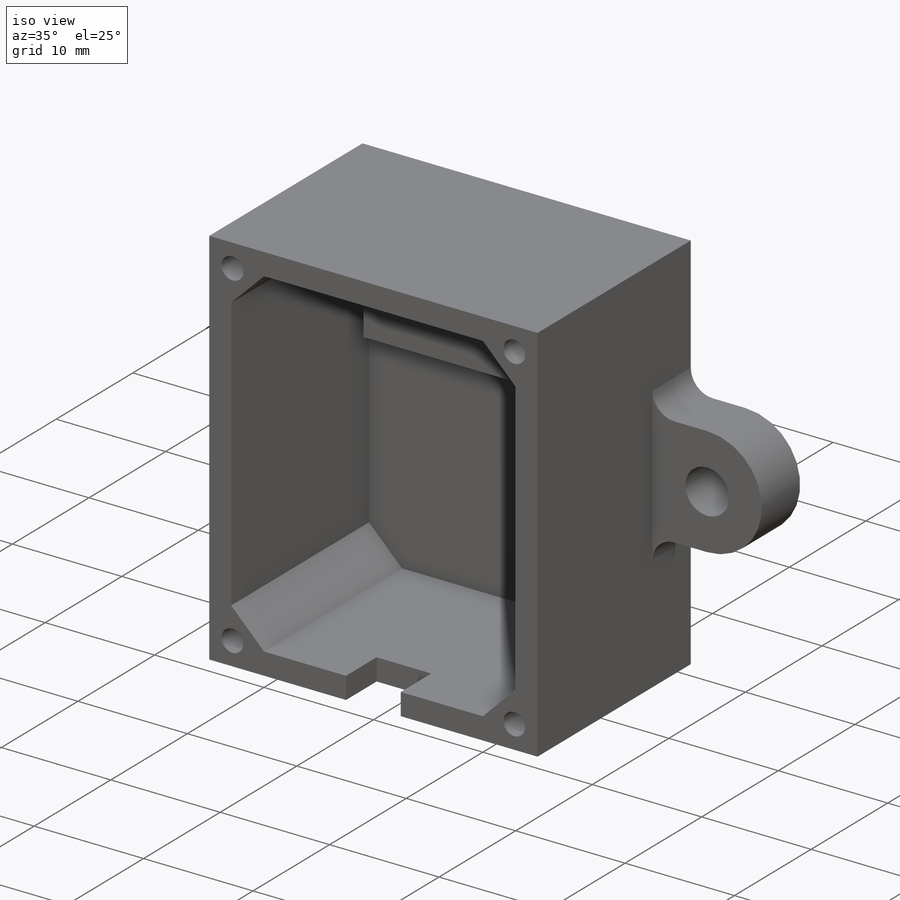
[diagram: iso view]
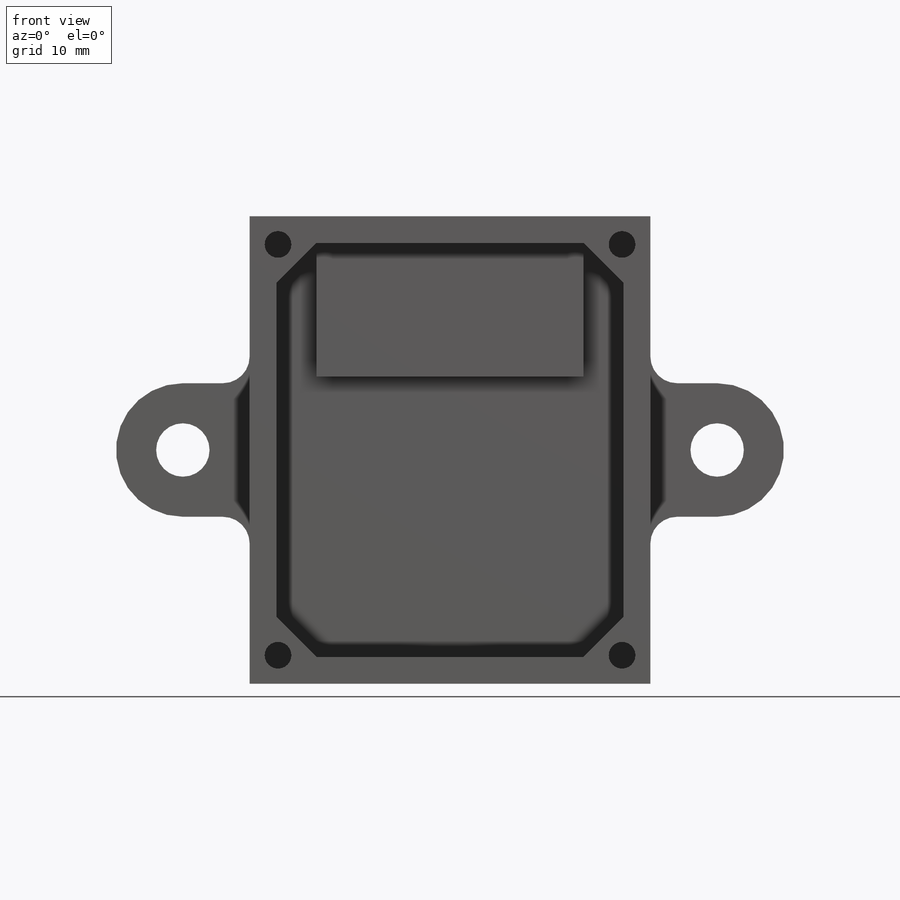
[diagram: front view]
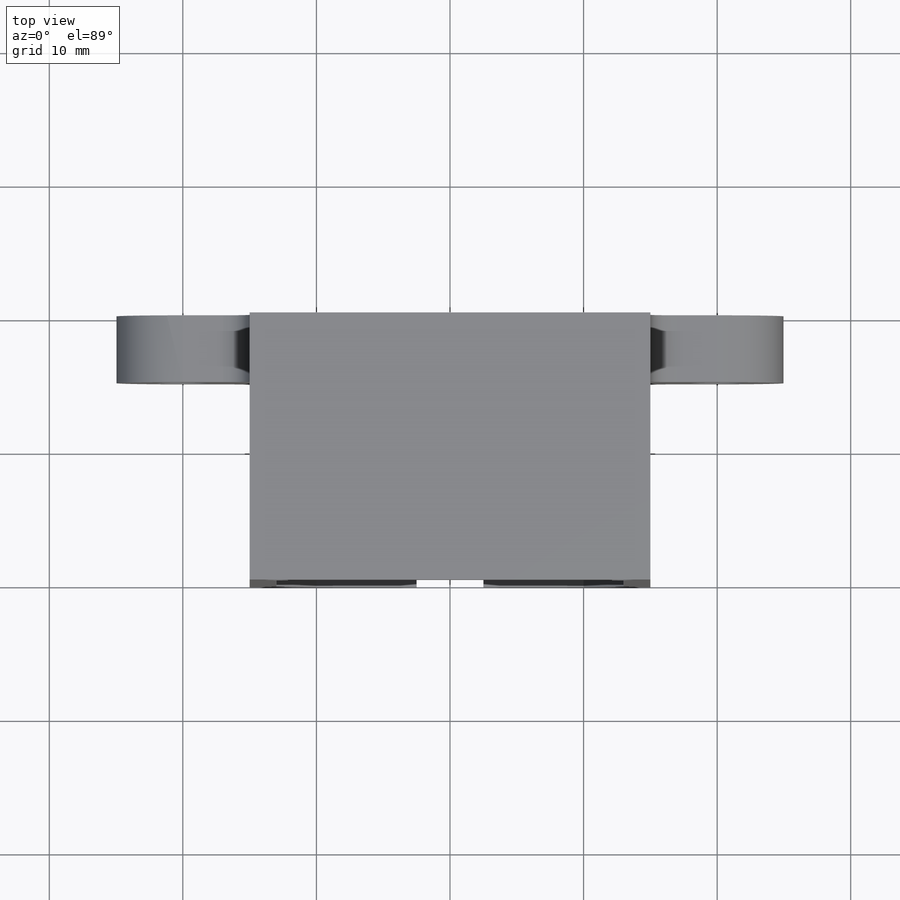
[diagram: top view]
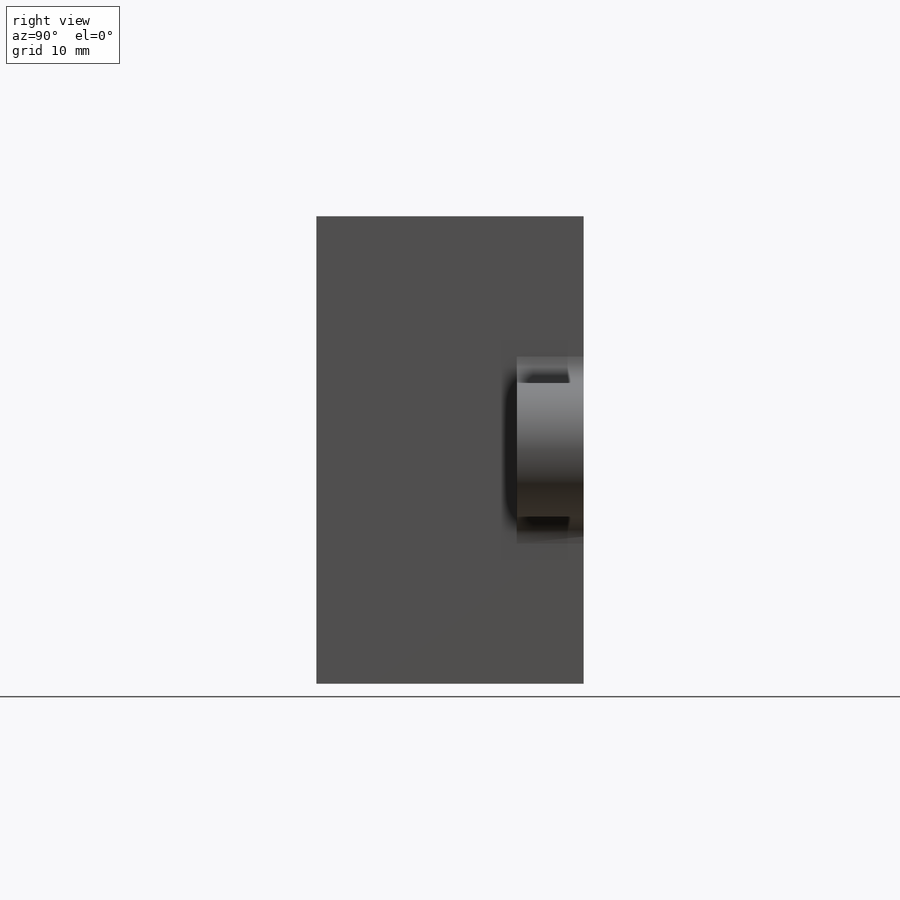
[diagram: right view]
SOLIDWORKS PART (.sldprt)
format: sldprt  version: not decoded by parser v0  size: 280,576 bytes
history: native  units: mm
features: sketch x7, cut_extrude x4, plane x3, extrude x3, material x1, fillet x1 (+9 scaffold rows collapsed)
feature tree (28):
  scaffold x9  (default folders/planes/origin — collapsed)
  material  "Matériau <non spécifié>"
  plane  "Plan de face"
  plane  "Plan de dessus"
  plane  "Plan de droite"
  sketch  "Esquisse1"  dims[D1=30.0mm D2=35.0mm D3=30.0mm]
  extrude  "Boss.-Extru.1"  Depth=20mm
  sketch  "Esquisse2"  dims[c1.D1=2.0mm c1.D2=2.0mm c1.D3=2.0mm c1.D4=3.0mm c1.D5=2.0mm c1.D6=2.0mm c2.D5=2.0mm c2.D6=3.0mm c2.D7=3.0mm c2.D8=3.0mm c2.D9=3.0mm c2.D10=3.0mm c2.D11=3.0mm c2.D12=3.0mm c2.D1=2.0mm c2.D2=2.0mm c2.D3=2.0mm c2.D4=2.0mm c3.D5=3.0mm c3.D6=3.0mm c3.D7=3.0mm c3.D8=3.0mm c3.D9=3.0mm c3.D10=3.0mm c3.D11=3.0mm c3.D12=3.0mm]
  cut_extrude  "Enlèv. mat.-Extru.1"  Depth=18mm
  sketch  "Esquisse3"  dims[c1.D2=5.0mm c1.D1=5.0mm c2.D2=5.0mm c2.D3=~5.802838mm]
  extrude  "Boss.-Extru.2"  Depth=5mm
  sketch  "Esquisse4"  dims[D1=4.0mm D2=~0.449357mm]
  cut_extrude  "Enlèv. mat.-Extru.2"  [1 undecoded]
  sketch  "Esquisse5"  dims[D1=10.0mm D2=~10.131095mm]
  extrude  "Boss.-Extru.3"  Depth=5mm
  sketch  "Esquisse6"  dims[D1=4.0mm D2=5.0mm D3=5.0mm]
  cut_extrude  "Enlèv. mat.-Extru.3"  [1 undecoded]
  fillet  "Congé1"  Radius=2mm
  sketch  "Esquisse7"  dims[c1.D1=2.0mm c1.D3=2.0mm c1.D2=3.0mm c1.D4=3.0mm c1.D5=3.0mm c2.D3=3.0mm]
  cut_extrude  "Enlèv. mat.-Extru.4"  Depth=10mm
decode coverage: 13 of 15 modeling features carry decoded parameters
note: ~ marks probable driven/reference dimensions
note: 2 parameter values undecoded
note: suppression state not decoded; provenance and decode notes live in map.json
